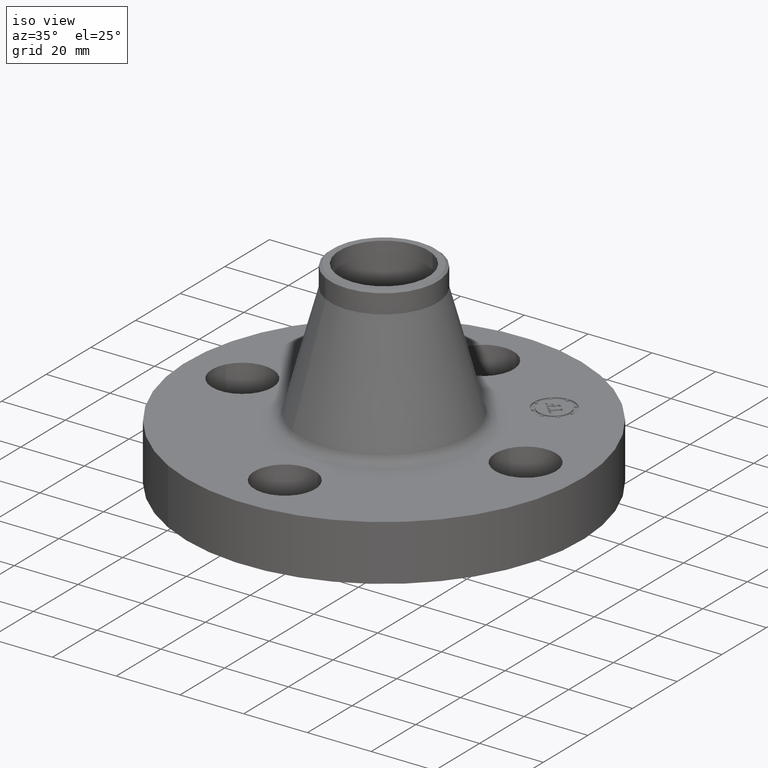
[diagram: clean part render]
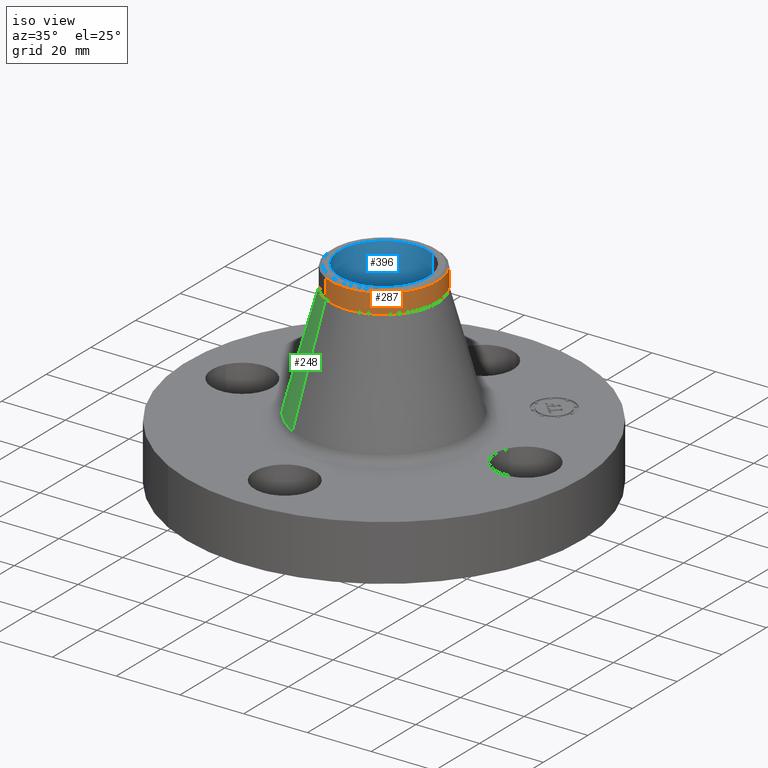
[diagram: same view with three faces highlighted in distinct colors, each labeled with its STEP entity id]
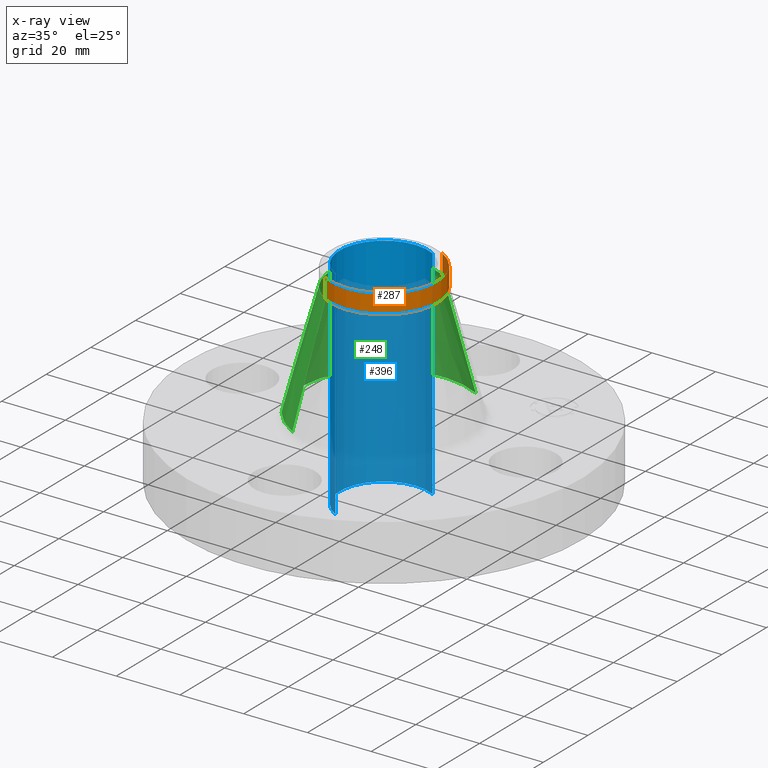
[diagram: x-ray of the same camera — body ghosted, the three highlighted faces saturated]
A machine part, iso view with three faces highlighted in distinct colors.
The next image is the same camera in x-ray (body ghosted, the three faces saturated) — at least one of them is partly hidden behind the body in this view.
Their STEP definitions:

[orange] entity #287 — the highlighted cylindrical surface (partial cylindrical patch) has radius 16.764 mm, axis along (0, 0, -1).
#220=AXIS2_PLACEMENT_3D('Circle Axis2P3D',#218,#219,$) ;
#252=AXIS2_PLACEMENT_3D('Cylinder Axis2P3D',#249,#250,#251) ;
#270=AXIS2_PLACEMENT_3D('Circle Axis2P3D',#268,#269,$) ;
#277=AXIS2_PLACEMENT_3D('Circle Axis2P3D',#275,#276,$) ;
#215=CARTESIAN_POINT('Vertex',(0.31642085548,0.57920449085,2.17864201628)) ;
#218=CARTESIAN_POINT('Axis2P3D Location',(0.,0.,2.17864201628)) ;
#222=CARTESIAN_POINT('Vertex',(-0.31642085548,-0.57920449085,2.17864201628)) ;
#249=CARTESIAN_POINT('Axis2P3D Location',(0.,0.,1.095)) ;
#254=CARTESIAN_POINT('Line Origine',(-0.31642085548,-0.57920449085,2.2967522525)) ;
#258=CARTESIAN_POINT('Vertex',(-0.31642085548,-0.57920449085,2.41486248872)) ;
#261=CARTESIAN_POINT('Line Origine',(0.31642085548,0.57920449085,2.2967522525)) ;
#265=CARTESIAN_POINT('Vertex',(0.31642085548,0.57920449085,2.41486248872)) ;
#268=CARTESIAN_POINT('Axis2P3D Location',(0.,0.,2.41486248872)) ;
#272=CARTESIAN_POINT('Vertex',(0.31642085548,-0.57920449085,2.41486248872)) ;
#275=CARTESIAN_POINT('Axis2P3D Location',(0.,0.,2.41486248872)) ;
#219=DIRECTION('Axis2P3D Direction',(0.,0.,-0.0393700787402)) ;
#250=DIRECTION('Axis2P3D Direction',(0.,0.,-0.0393700787402)) ;
#251=DIRECTION('Axis2P3D XDirection',(-0.0188750212049,-0.0345504945626,0.)) ;
#255=DIRECTION('Vector Direction',(0.,0.,-0.0393700787402)) ;
#262=DIRECTION('Vector Direction',(0.,0.,-0.0393700787402)) ;
#269=DIRECTION('Axis2P3D Direction',(0.,0.,-0.0393700787402)) ;
#276=DIRECTION('Axis2P3D Direction',(0.,0.,-0.0393700787402)) ;
#256=VECTOR('Line Direction',#255,0.0393700787402) ;
#263=VECTOR('Line Direction',#262,0.0393700787402) ;
#281=ORIENTED_EDGE('',*,*,#260,.F.) ;
#282=ORIENTED_EDGE('',*,*,#224,.F.) ;
#283=ORIENTED_EDGE('',*,*,#267,.T.) ;
#284=ORIENTED_EDGE('',*,*,#274,.F.) ;
#285=ORIENTED_EDGE('',*,*,#279,.T.) ;
#287=ADVANCED_FACE('PartBody',(#286),#253,.T.) ;
#221=CIRCLE('generated circle',#220,0.660000000003) ;
#271=CIRCLE('generated circle',#270,0.660000000003) ;
#278=CIRCLE('generated circle',#277,0.660000000003) ;
#253=CYLINDRICAL_SURFACE('generated cylinder',#252,0.660000000003) ;
#224=EDGE_CURVE('',#216,#223,#221,.T.) ;
#260=EDGE_CURVE('',#223,#259,#257,.F.) ;
#267=EDGE_CURVE('',#216,#266,#264,.F.) ;
#274=EDGE_CURVE('',#273,#266,#271,.F.) ;
#279=EDGE_CURVE('',#273,#259,#278,.T.) ;
#280=EDGE_LOOP('',(#281,#282,#283,#284,#285)) ;
#286=FACE_OUTER_BOUND('',#280,.T.) ;
#257=LINE('Line',#254,#256) ;
#264=LINE('Line',#261,#263) ;
#216=VERTEX_POINT('',#215) ;
#223=VERTEX_POINT('',#222) ;
#259=VERTEX_POINT('',#258) ;
#266=VERTEX_POINT('',#265) ;
#273=VERTEX_POINT('',#272) ;

[blue] entity #396 — the highlighted cylindrical surface (partial cylindrical patch) has radius 13.9319 mm, axis along (0, 0, -1).
#343=AXIS2_PLACEMENT_3D('Cylinder Axis2P3D',#340,#341,#342) ;
#382=AXIS2_PLACEMENT_3D('Circle Axis2P3D',#380,#381,$) ;
#387=AXIS2_PLACEMENT_3D('Circle Axis2P3D',#385,#386,$) ;
#340=CARTESIAN_POINT('Axis2P3D Location',(0.,0.,1.095)) ;
#349=CARTESIAN_POINT('Vertex',(0.262964907925,0.481354035199,2.44000000001)) ;
#351=CARTESIAN_POINT('Vertex',(-0.262964907925,-0.481354035199,2.44000000001)) ;
#354=CARTESIAN_POINT('Line Origine',(0.262964907925,0.481354035199,1.095)) ;
#358=CARTESIAN_POINT('Vertex',(0.262964907925,0.481354035199,-0.250000000001)) ;
#365=CARTESIAN_POINT('Vertex',(-0.262964907925,-0.481354035199,-0.250000000001)) ;
#368=CARTESIAN_POINT('Line Origine',(-0.262964907925,-0.481354035199,1.095)) ;
#380=CARTESIAN_POINT('Axis2P3D Location',(0.,0.,2.44000000001)) ;
#385=CARTESIAN_POINT('Axis2P3D Location',(0.,0.,-0.250000000001)) ;
#341=DIRECTION('Axis2P3D Direction',(0.,0.,-0.0393700787402)) ;
#342=DIRECTION('Axis2P3D XDirection',(-0.0188750212049,-0.0345504945626,0.)) ;
#355=DIRECTION('Vector Direction',(0.,0.,-0.0393700787402)) ;
#369=DIRECTION('Vector Direction',(0.,0.,-0.0393700787402)) ;
#381=DIRECTION('Axis2P3D Direction',(0.,0.,-0.0393700787402)) ;
#386=DIRECTION('Axis2P3D Direction',(0.,0.,-0.0393700787402)) ;
#356=VECTOR('Line Direction',#355,0.0393700787402) ;
#370=VECTOR('Line Direction',#369,0.0393700787402) ;
#391=ORIENTED_EDGE('',*,*,#384,.F.) ;
#392=ORIENTED_EDGE('',*,*,#372,.T.) ;
#393=ORIENTED_EDGE('',*,*,#389,.T.) ;
#394=ORIENTED_EDGE('',*,*,#360,.F.) ;
#396=ADVANCED_FACE('PartBody',(#395),#344,.F.) ;
#383=CIRCLE('generated circle',#382,0.548500000002) ;
#388=CIRCLE('generated circle',#387,0.548500000002) ;
#344=CYLINDRICAL_SURFACE('generated cylinder',#343,0.548500000002) ;
#360=EDGE_CURVE('',#350,#359,#357,.T.) ;
#372=EDGE_CURVE('',#352,#366,#371,.T.) ;
#384=EDGE_CURVE('',#352,#350,#383,.T.) ;
#389=EDGE_CURVE('',#366,#359,#388,.T.) ;
#390=EDGE_LOOP('',(#391,#392,#393,#394)) ;
#395=FACE_OUTER_BOUND('',#390,.T.) ;
#357=LINE('Line',#354,#356) ;
#371=LINE('Line',#368,#370) ;
#350=VERTEX_POINT('',#349) ;
#352=VERTEX_POINT('',#351) ;
#359=VERTEX_POINT('',#358) ;
#366=VERTEX_POINT('',#365) ;

[green] entity #248 — the highlighted conical surface has half-angle 15.04 deg.
#196=AXIS2_PLACEMENT_3D('Circle Axis2P3D',#194,#195,$) ;
#209=AXIS2_PLACEMENT_3D('Cone Axis2P3D',#206,#207,#208) ;
#239=AXIS2_PLACEMENT_3D('Circle Axis2P3D',#237,#238,$) ;
#167=CARTESIAN_POINT('Vertex',(0.496743873786,0.909283561802,0.778860402991)) ;
#174=CARTESIAN_POINT('Vertex',(-0.496743873786,-0.909283561802,0.778860402991)) ;
#194=CARTESIAN_POINT('Axis2P3D Location',(0.,0.,0.778860402991)) ;
#206=CARTESIAN_POINT('Axis2P3D Location',(0.,0.,2.17864201628)) ;
#211=CARTESIAN_POINT('Line Origine',(0.406582364633,0.744244026326,1.47875120964)) ;
#215=CARTESIAN_POINT('Vertex',(0.31642085548,0.57920449085,2.17864201628)) ;
#222=CARTESIAN_POINT('Vertex',(-0.31642085548,-0.57920449085,2.17864201628)) ;
#225=CARTESIAN_POINT('Line Origine',(-0.406582364633,-0.744244026326,1.47875120964)) ;
#237=CARTESIAN_POINT('Axis2P3D Location',(0.,0.,2.17864201628)) ;
#195=DIRECTION('Axis2P3D Direction',(0.,0.,-0.0393700787402)) ;
#207=DIRECTION('Axis2P3D Direction',(0.,0.,-0.0393700787402)) ;
#208=DIRECTION('Axis2P3D XDirection',(-0.0188750212049,-0.0345504945626,0.)) ;
#212=DIRECTION('Vector Direction',(0.00489800461591,0.00896573731031,-0.0380214177178)) ;
#226=DIRECTION('Vector Direction',(-0.00489800461591,-0.00896573731031,-0.0380214177178)) ;
#238=DIRECTION('Axis2P3D Direction',(0.,0.,-0.0393700787402)) ;
#213=VECTOR('Line Direction',#212,0.0393700787402) ;
#227=VECTOR('Line Direction',#226,0.0393700787402) ;
#243=ORIENTED_EDGE('',*,*,#198,.F.) ;
#244=ORIENTED_EDGE('',*,*,#229,.T.) ;
#245=ORIENTED_EDGE('',*,*,#241,.T.) ;
#246=ORIENTED_EDGE('',*,*,#217,.F.) ;
#248=ADVANCED_FACE('PartBody',(#247),#210,.T.) ;
#197=CIRCLE('generated circle',#196,1.03612309689) ;
#240=CIRCLE('generated circle',#239,0.660000000003) ;
#210=CONICAL_SURFACE('Cone',#209,0.660000000003,0.262500953483) ;
#198=EDGE_CURVE('',#175,#168,#197,.T.) ;
#217=EDGE_CURVE('',#168,#216,#214,.F.) ;
#229=EDGE_CURVE('',#175,#223,#228,.F.) ;
#241=EDGE_CURVE('',#223,#216,#240,.T.) ;
#242=EDGE_LOOP('',(#243,#244,#245,#246)) ;
#247=FACE_OUTER_BOUND('',#242,.T.) ;
#214=LINE('Line',#211,#213) ;
#228=LINE('Line',#225,#227) ;
#168=VERTEX_POINT('',#167) ;
#175=VERTEX_POINT('',#174) ;
#216=VERTEX_POINT('',#215) ;
#223=VERTEX_POINT('',#222) ;